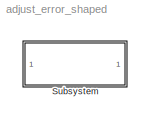
MODEL adjust_error_shaped
KIND model
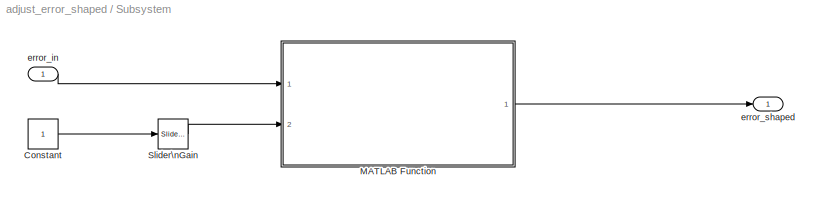
BLOCK [SubSystem] Subsystem
  FunctionWithSeparateData = off
  MaskHideContents = off
  MinAlgLoopOccurrences = off
  Opaque = off
  Ports = [1, 1]
  PropExecContextOutsideSubsystem = off
  RTWSystemCode = Auto
  RequestExecContextInheritance = off
  SID = 2
BLOCK [Constant] Subsystem/Constant
  SID = 5
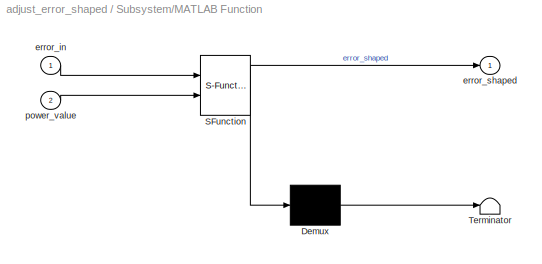
BLOCK [SubSystem] Subsystem/MATLAB Function
  ErrorFcn = Stateflow.Translate.translate
  FunctionWithSeparateData = off
  MaskHideContents = off
  MinAlgLoopOccurrences = off
  Opaque = off
  PermitHierarchicalResolution = ExplicitOnly
  Ports = [2, 1]
  PropExecContextOutsideSubsystem = off
  RTWSystemCode = Auto
  RequestExecContextInheritance = off
  SFBlockType = MATLAB Function
  SID = 1
  TreatAsAtomicUnit = on
BLOCK [Demux] Subsystem/MATLAB Function/ Demux 
  Outputs = 1
  Ports = [1, 1]
  SID = 1::19
BLOCK [S-Function] Subsystem/MATLAB Function/ SFunction 
  EnableBusSupport = off
  FunctionName = sf_sfun
  PortCounts = [2 2]
  Ports = [2, 2]
  SID = 1::18
  Tag = Stateflow S-Function adjust_error_shaped 2
BLOCK [Terminator] Subsystem/MATLAB Function/ Terminator 
  SID = 1::20
BLOCK [Inport] Subsystem/MATLAB Function/error_in
  IconDisplay = Port number
  SID = 1::1
BLOCK [Outport] Subsystem/MATLAB Function/error_shaped
  IconDisplay = Port number
  SID = 1::5
BLOCK [Inport] Subsystem/MATLAB Function/power_value
  IconDisplay = Port number
  Port = 2
  SID = 1::21
BLOCK [Reference] Subsystem/Slider\nGain  REF=simulink/Math\nOperations/Slider\nGain
  Ports = [1, 1]
  SID = 6
  SourceBlock = simulink/Math\nOperations/Slider\nGain
  SourceType = Slider Gain
  gain = 1.5
  high = 2
  low = 0
BLOCK [Inport] Subsystem/error_in
  IconDisplay = Port number
  SID = 3
BLOCK [Outport] Subsystem/error_shaped
  IconDisplay = Port number
  SID = 4
LINE Subsystem/Constant:1 -> Subsystem/Slider\nGain:1
LINE Subsystem/MATLAB Function/ Demux :1 -> Subsystem/MATLAB Function/ Terminator :1
LINE Subsystem/MATLAB Function/ SFunction :1 -> Subsystem/MATLAB Function/ Demux :1
LINE Subsystem/MATLAB Function/ SFunction :2 -> Subsystem/MATLAB Function/error_shaped:1
LINE Subsystem/MATLAB Function/error_in:1 -> Subsystem/MATLAB Function/ SFunction :1
LINE Subsystem/MATLAB Function/power_value:1 -> Subsystem/MATLAB Function/ SFunction :2
LINE Subsystem/MATLAB Function:1 -> Subsystem/error_shaped:1
LINE Subsystem/Slider\nGain:1 -> Subsystem/MATLAB Function:2
LINE Subsystem/error_in:1 -> Subsystem/MATLAB Function:1
CHART Subsystem/MATLAB Function states=1 transitions=1
  STATE_LABEL 'eML_blk_kernel()'
